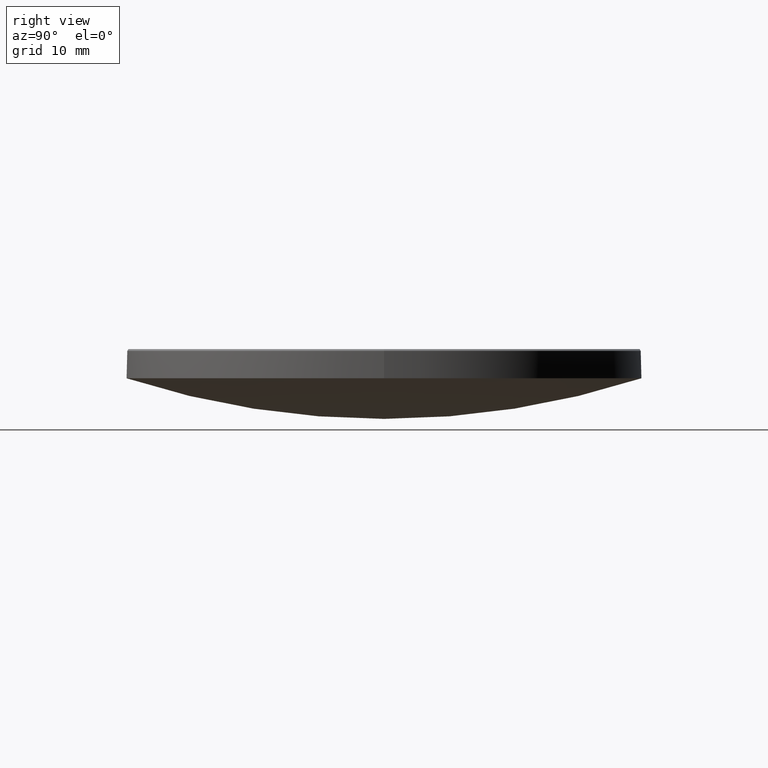
[diagram: clean part render]
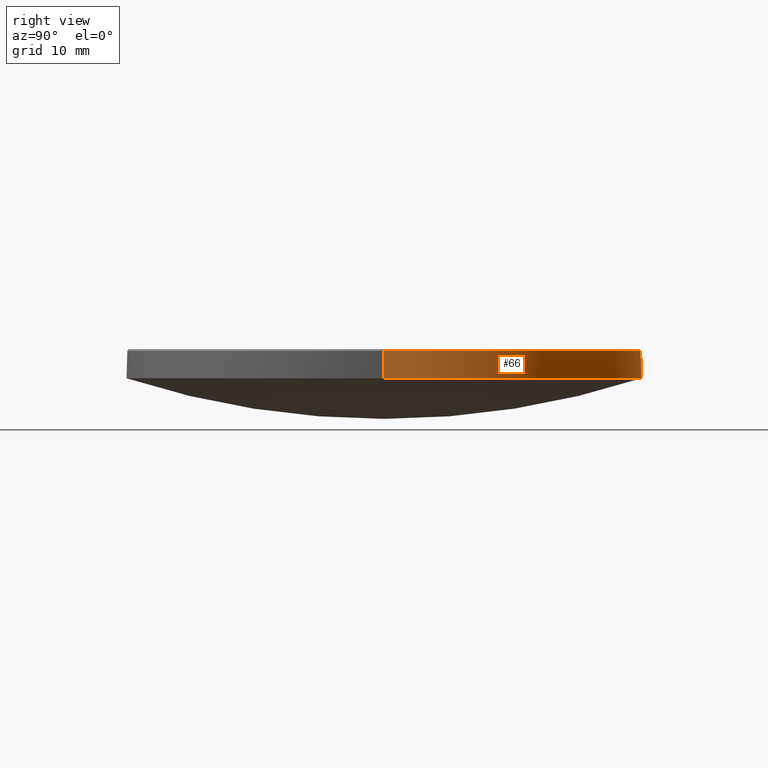
[diagram: same view with one face highlighted and labeled with its STEP entity id]
A machine part, right view. The second image highlights one B-rep face of the part: STEP entity #66.
In plain terms, the highlighted cylindrical surface (partial cylindrical patch) has radius 25.4 mm, axis along (-0, -0, -1).
Its self-contained STEP definition (entity closure, byte-faithful):
#11 = AXIS2_PLACEMENT_3D ( 'NONE', #251, #253, #115 ) ;
#19 = VECTOR ( 'NONE', #121, 1000.000000000000000 ) ;
#21 = DIRECTION ( 'NONE',  ( -0.000000000000000000, -0.000000000000000000, 1.000000000000000000 ) ) ;
#35 = CARTESIAN_POINT ( 'NONE',  ( 0.000000000000000000, 0.000000000000000000, 15.69999999999996376 ) ) ;
#36 = DIRECTION ( 'NONE',  ( 1.000000000000000000, 0.000000000000000000, 0.000000000000000000 ) ) ;
#38 = CARTESIAN_POINT ( 'NONE',  ( 0.000000000000000000, 0.000000000000000000, 13.00000000000000000 ) ) ;
#39 = DIRECTION ( 'NONE',  ( 1.000000000000000000, 0.000000000000000000, 0.000000000000000000 ) ) ;
#46 = VECTOR ( 'NONE', #63, 1000.000000000000000 ) ;
#53 = CARTESIAN_POINT ( 'NONE',  ( -25.39999999999999503, 0.000000000000000000, 13.00000000000000000 ) ) ;
#63 = DIRECTION ( 'NONE',  ( -0.000000000000000000, -0.000000000000000000, -1.000000000000000000 ) ) ;
#66 = ADVANCED_FACE ( 'NONE', ( #191 ), #97, .T. ) ;
#71 = ORIENTED_EDGE ( 'NONE', *, *, #245, .T. ) ;
#88 = VERTEX_POINT ( 'NONE', #96 ) ;
#92 = EDGE_LOOP ( 'NONE', ( #220, #180, #71, #282, #133 ) ) ;
#96 = CARTESIAN_POINT ( 'NONE',  ( 25.39999999999999503, 3.110602869834276471E-15, 13.00000000000000000 ) ) ;
#97 = CYLINDRICAL_SURFACE ( 'NONE', #11, 25.39999999999999858 ) ;
#112 = CIRCLE ( 'NONE', #277, 25.39999999999999858 ) ;
#114 = CIRCLE ( 'NONE', #278, 25.39999999999999503 ) ;
#115 = DIRECTION ( 'NONE',  ( -1.000000000000000000, 0.000000000000000000, 0.000000000000000000 ) ) ;
#119 = CARTESIAN_POINT ( 'NONE',  ( 0.000000000000000000, 25.39999999999999147, 12.99999999999999822 ) ) ;
#121 = DIRECTION ( 'NONE',  ( -0.000000000000000000, -0.000000000000000000, -1.000000000000000000 ) ) ;
#129 = VERTEX_POINT ( 'NONE', #53 ) ;
#130 = EDGE_CURVE ( 'NONE', #265, #178, #112, .T. ) ;
#133 = ORIENTED_EDGE ( 'NONE', *, *, #183, .F. ) ;
#143 = CARTESIAN_POINT ( 'NONE',  ( -25.39999999999999858, 0.000000000000000000, 15.69999999999996376 ) ) ;
#167 = CARTESIAN_POINT ( 'NONE',  ( 25.39999999999999858, 3.110602869834276865E-15, 20.00000000000000000 ) ) ;
#172 = LINE ( 'NONE', #214, #46 ) ;
#178 = VERTEX_POINT ( 'NONE', #235 ) ;
#180 = ORIENTED_EDGE ( 'NONE', *, *, #266, .T. ) ;
#183 = EDGE_CURVE ( 'NONE', #265, #129, #172, .T. ) ;
#191 = FACE_OUTER_BOUND ( 'NONE', #92, .T. ) ;
#194 = LINE ( 'NONE', #167, #19 ) ;
#210 = DIRECTION ( 'NONE',  ( 1.000000000000000000, 0.000000000000000000, 0.000000000000000000 ) ) ;
#214 = CARTESIAN_POINT ( 'NONE',  ( -25.39999999999999858, 0.000000000000000000, 20.00000000000000000 ) ) ;
#217 = CARTESIAN_POINT ( 'NONE',  ( 0.000000000000000000, 0.000000000000000000, 13.00000000000000000 ) ) ;
#219 = CIRCLE ( 'NONE', #256, 25.39999999999999503 ) ;
#220 = ORIENTED_EDGE ( 'NONE', *, *, #130, .T. ) ;
#235 = CARTESIAN_POINT ( 'NONE',  ( 25.39999999999999858, 3.110602869834276865E-15, 15.69999999999996376 ) ) ;
#245 = EDGE_CURVE ( 'NONE', #88, #269, #219, .T. ) ;
#251 = CARTESIAN_POINT ( 'NONE',  ( 0.000000000000000000, 0.000000000000000000, 20.00000000000000000 ) ) ;
#253 = DIRECTION ( 'NONE',  ( -0.000000000000000000, -0.000000000000000000, -1.000000000000000000 ) ) ;
#256 = AXIS2_PLACEMENT_3D ( 'NONE', #217, #21, #36 ) ;
#257 = EDGE_CURVE ( 'NONE', #269, #129, #114, .T. ) ;
#265 = VERTEX_POINT ( 'NONE', #143 ) ;
#266 = EDGE_CURVE ( 'NONE', #178, #88, #194, .T. ) ;
#269 = VERTEX_POINT ( 'NONE', #119 ) ;
#271 = DIRECTION ( 'NONE',  ( 0.000000000000000000, 0.000000000000000000, -1.000000000000000000 ) ) ;
#277 = AXIS2_PLACEMENT_3D ( 'NONE', #35, #271, #210 ) ;
#278 = AXIS2_PLACEMENT_3D ( 'NONE', #38, #279, #39 ) ;
#279 = DIRECTION ( 'NONE',  ( -0.000000000000000000, -0.000000000000000000, 1.000000000000000000 ) ) ;
#282 = ORIENTED_EDGE ( 'NONE', *, *, #257, .T. ) ;